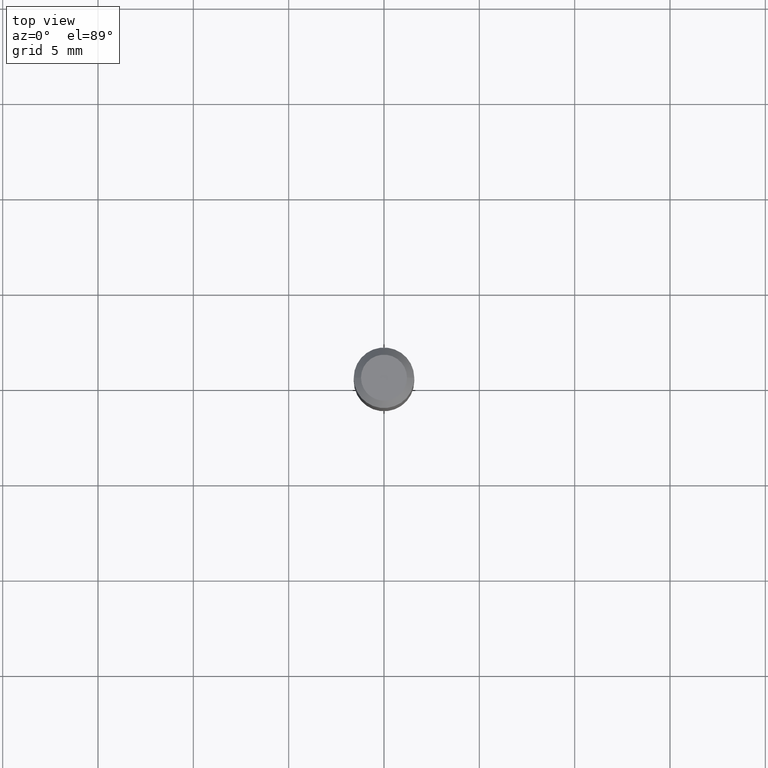
[diagram: clean part render]
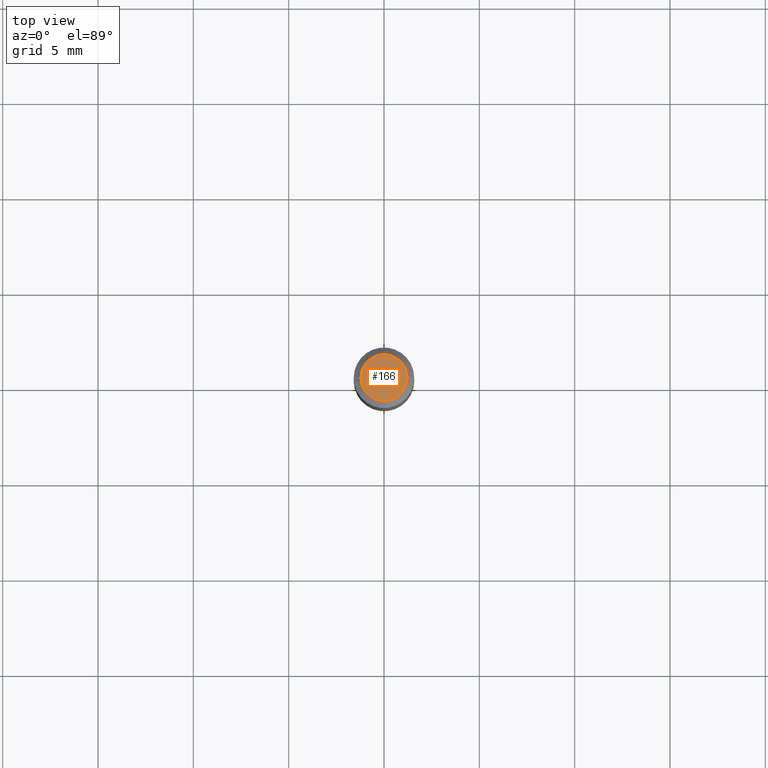
[diagram: same view with one face highlighted and labeled with its STEP entity id]
A machine part, top view. The second image highlights one B-rep face of the part: STEP entity #166.
In plain terms, the highlighted planar face has unit normal (0, -0, -1).
Its self-contained STEP definition (entity closure, byte-faithful):
#17 = PLANE ( 'NONE',  #351 ) ;
#23 = AXIS2_PLACEMENT_3D ( 'NONE', #67, #463, #28 ) ;
#28 = DIRECTION ( 'NONE',  ( 1.000000000000000000, -6.982962677686267499E-15, 4.884662768193073002E-29 ) ) ;
#67 = CARTESIAN_POINT ( 'NONE',  ( -2.427605901612193195E-45, 3.465977845273231710E-31, 9.926955091278351202E-17 ) ) ;
#80 = AXIS2_PLACEMENT_3D ( 'NONE', #126, #457, #97 ) ;
#91 = EDGE_CURVE ( 'NONE', #182, #248, #281, .T. ) ;
#97 = DIRECTION ( 'NONE',  ( 1.000000000000000000, -6.982962677686267499E-15, 4.884662768193073002E-29 ) ) ;
#126 = CARTESIAN_POINT ( 'NONE',  ( -2.427605901612193195E-45, 3.465977845273231710E-31, 9.926955091278351202E-17 ) ) ;
#128 = FACE_OUTER_BOUND ( 'NONE', #222, .T. ) ;
#160 = CARTESIAN_POINT ( 'NONE',  ( 0.04749999999999999362, -4.035134999187576651E-16, 9.926955091278610047E-17 ) ) ;
#165 = CARTESIAN_POINT ( 'NONE',  ( 3.316907271900976096E-16, 0.04749999999999999362, -1.162105881386576343E-16 ) ) ;
#166 = ADVANCED_FACE ( 'NONE', ( #128 ), #17, .F. ) ;
#182 = VERTEX_POINT ( 'NONE', #160 ) ;
#222 = EDGE_LOOP ( 'NONE', ( #320, #364 ) ) ;
#248 = VERTEX_POINT ( 'NONE', #350 ) ;
#281 = CIRCLE ( 'NONE', #80, 0.04749999999999999362 ) ;
#320 = ORIENTED_EDGE ( 'NONE', *, *, #336, .T. ) ;
#336 = EDGE_CURVE ( 'NONE', #248, #182, #460, .T. ) ;
#350 = CARTESIAN_POINT ( 'NONE',  ( -0.04749999999999999362, 3.578768372314212971E-16, 9.926955091278110846E-17 ) ) ;
#351 = AXIS2_PLACEMENT_3D ( 'NONE', #165, #415, #383 ) ;
#364 = ORIENTED_EDGE ( 'NONE', *, *, #91, .T. ) ;
#383 = DIRECTION ( 'NONE',  ( -1.000000000000000000, 6.982962677686265922E-15, -4.876176775795935793E-29 ) ) ;
#415 = DIRECTION ( 'NONE',  ( 2.438088387897960049E-29, -3.491481338843145188E-15, -1.000000000000000000 ) ) ;
#457 = DIRECTION ( 'NONE',  ( -2.445468806185136597E-29, 3.491481338843145583E-15, 1.000000000000000000 ) ) ;
#460 = CIRCLE ( 'NONE', #23, 0.04749999999999999362 ) ;
#463 = DIRECTION ( 'NONE',  ( -2.445468806185136597E-29, 3.491481338843145583E-15, 1.000000000000000000 ) ) ;